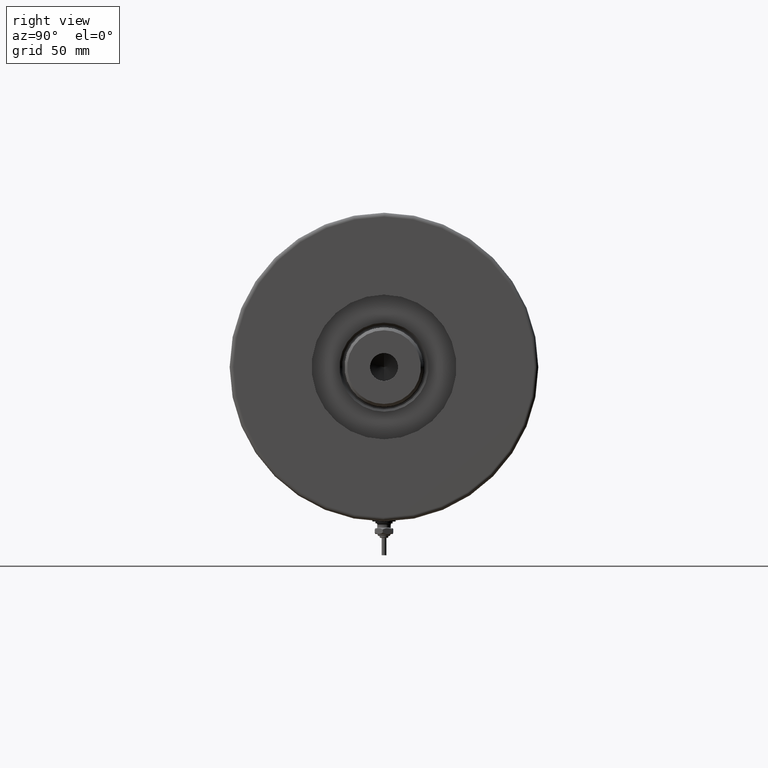
[diagram: clean part render]
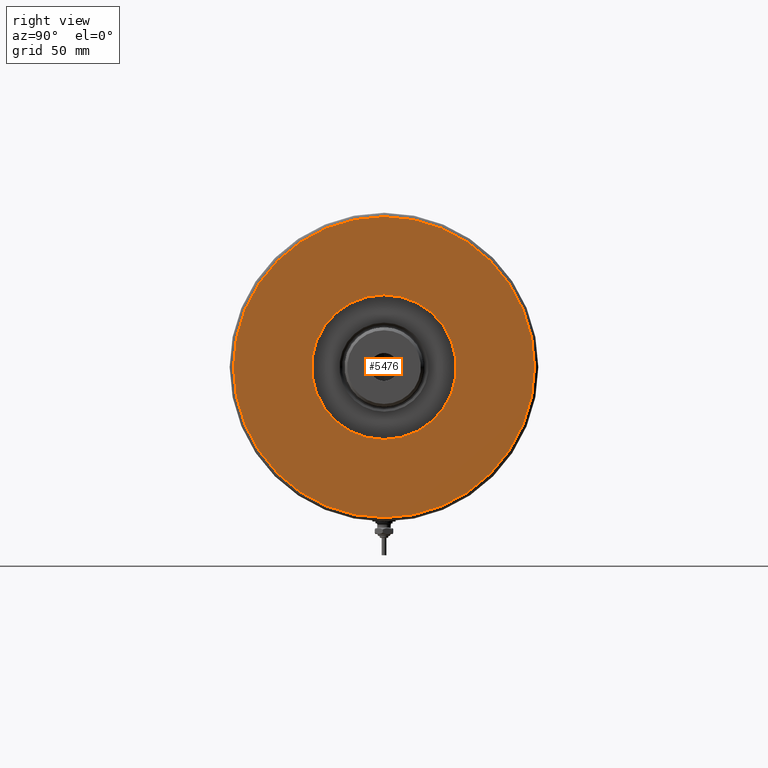
[diagram: same view with one face highlighted and labeled with its STEP entity id]
A machine part, right view. The second image highlights one B-rep face of the part: STEP entity #5476.
In plain terms, the highlighted planar face has unit normal (1, 0, -0).
Its self-contained STEP definition (entity closure, byte-faithful):
#104 = VERTEX_POINT ( 'NONE', #2557 ) ;
#152 = EDGE_LOOP ( 'NONE', ( #2065, #3654 ) ) ;
#177 = DIRECTION ( 'NONE',  ( 0.000000000000000000, 0.000000000000000000, 1.000000000000000000 ) ) ;
#245 = DIRECTION ( 'NONE',  ( 0.000000000000000000, 0.000000000000000000, 1.000000000000000000 ) ) ;
#326 = DIRECTION ( 'NONE',  ( 1.000000000000000000, 0.000000000000000000, 0.000000000000000000 ) ) ;
#396 = FACE_BOUND ( 'NONE', #4485, .T. ) ;
#440 = VERTEX_POINT ( 'NONE', #6322 ) ;
#735 = DIRECTION ( 'NONE',  ( 1.000000000000000000, 0.000000000000000000, 0.000000000000000000 ) ) ;
#870 = AXIS2_PLACEMENT_3D ( 'NONE', #3797, #5303, #3438 ) ;
#974 = EDGE_CURVE ( 'NONE', #440, #104, #5702, .T. ) ;
#977 = CIRCLE ( 'NONE', #4987, 37.50000000000000711 ) ;
#1054 = EDGE_CURVE ( 'NONE', #104, #440, #6012, .T. ) ;
#1432 = DIRECTION ( 'NONE',  ( 0.000000000000000000, 0.000000000000000000, 1.000000000000000000 ) ) ;
#1445 = CIRCLE ( 'NONE', #1756, 37.50000000000000711 ) ;
#1639 = CARTESIAN_POINT ( 'NONE',  ( 0.000000000000000000, 0.000000000000000000, 46.00000000000000000 ) ) ;
#1695 = DIRECTION ( 'NONE',  ( 1.000000000000000000, 0.000000000000000000, 0.000000000000000000 ) ) ;
#1703 = EDGE_CURVE ( 'NONE', #6023, #4356, #977, .T. ) ;
#1756 = AXIS2_PLACEMENT_3D ( 'NONE', #1639, #245, #735 ) ;
#1938 = ORIENTED_EDGE ( 'NONE', *, *, #6094, .F. ) ;
#1948 = AXIS2_PLACEMENT_3D ( 'NONE', #4896, #1432, #5903 ) ;
#2065 = ORIENTED_EDGE ( 'NONE', *, *, #974, .T. ) ;
#2217 = CARTESIAN_POINT ( 'NONE',  ( 0.000000000000000000, 0.000000000000000000, 46.00000000000000000 ) ) ;
#2323 = PLANE ( 'NONE',  #1948 ) ;
#2557 = CARTESIAN_POINT ( 'NONE',  ( -78.00000000000000000, 9.674709713264090904E-15, 46.00000000000000000 ) ) ;
#2714 = AXIS2_PLACEMENT_3D ( 'NONE', #2217, #5671, #326 ) ;
#3007 = CARTESIAN_POINT ( 'NONE',  ( 37.50000000000000711, 0.000000000000000000, 46.00000000000000000 ) ) ;
#3198 = CARTESIAN_POINT ( 'NONE',  ( 0.000000000000000000, 0.000000000000000000, 46.00000000000000000 ) ) ;
#3230 = CARTESIAN_POINT ( 'NONE',  ( -37.50000000000000711, 4.592425496802575156E-15, 46.00000000000000000 ) ) ;
#3438 = DIRECTION ( 'NONE',  ( 1.000000000000000000, 0.000000000000000000, 0.000000000000000000 ) ) ;
#3654 = ORIENTED_EDGE ( 'NONE', *, *, #1054, .T. ) ;
#3797 = CARTESIAN_POINT ( 'NONE',  ( 0.000000000000000000, 0.000000000000000000, 46.00000000000000000 ) ) ;
#3925 = FACE_OUTER_BOUND ( 'NONE', #152, .T. ) ;
#4355 = ORIENTED_EDGE ( 'NONE', *, *, #1703, .F. ) ;
#4356 = VERTEX_POINT ( 'NONE', #3230 ) ;
#4485 = EDGE_LOOP ( 'NONE', ( #4355, #1938 ) ) ;
#4896 = CARTESIAN_POINT ( 'NONE',  ( 0.000000000000000000, 0.000000000000000000, 46.00000000000000000 ) ) ;
#4987 = AXIS2_PLACEMENT_3D ( 'NONE', #3198, #177, #1695 ) ;
#5303 = DIRECTION ( 'NONE',  ( 0.000000000000000000, 0.000000000000000000, 1.000000000000000000 ) ) ;
#5476 = ADVANCED_FACE ( 'NONE', ( #3925, #396 ), #2323, .T. ) ;
#5671 = DIRECTION ( 'NONE',  ( 0.000000000000000000, 0.000000000000000000, 1.000000000000000000 ) ) ;
#5702 = CIRCLE ( 'NONE', #2714, 78.00000000000000000 ) ;
#5903 = DIRECTION ( 'NONE',  ( 1.000000000000000000, 0.000000000000000000, -0.000000000000000000 ) ) ;
#6012 = CIRCLE ( 'NONE', #870, 78.00000000000000000 ) ;
#6023 = VERTEX_POINT ( 'NONE', #3007 ) ;
#6094 = EDGE_CURVE ( 'NONE', #4356, #6023, #1445, .T. ) ;
#6322 = CARTESIAN_POINT ( 'NONE',  ( 78.00000000000000000, 0.000000000000000000, 46.00000000000000000 ) ) ;